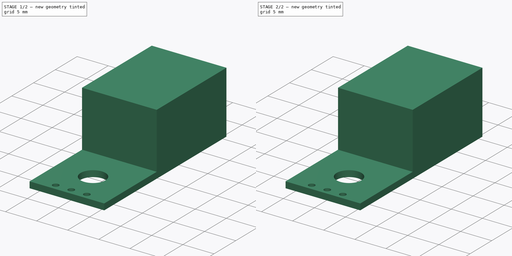
[diagram: build sequence overview — one tinted view per stage of 2, left to right]
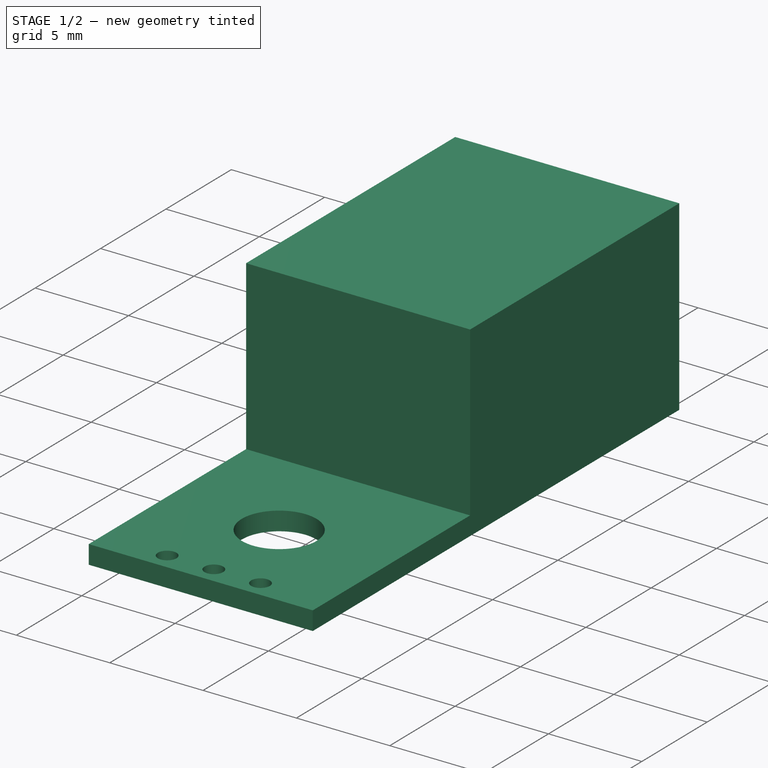
[diagram: stage 1 of 2 — iso view after this stage's code; geometry added in this stage tinted green]
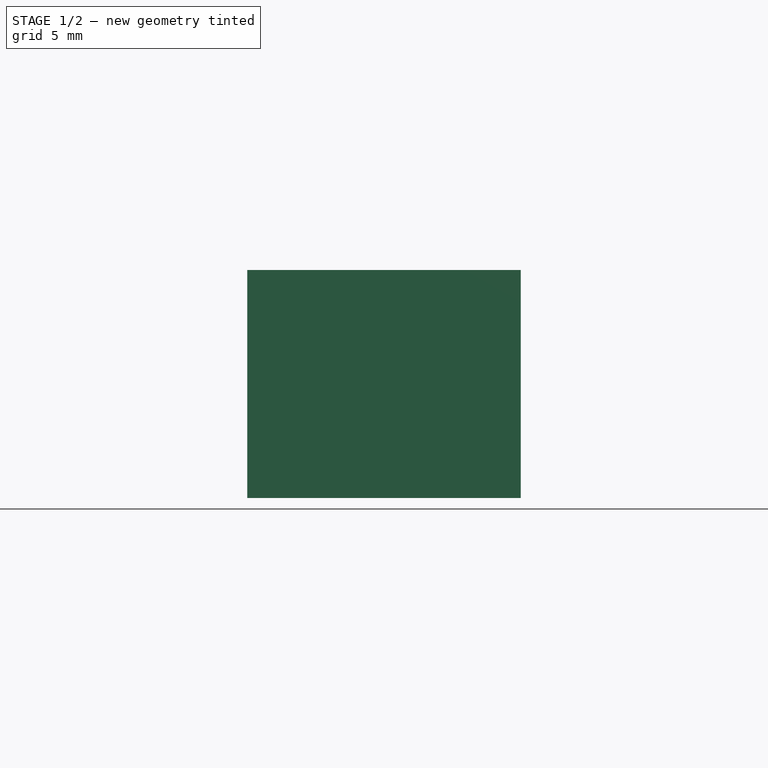
[diagram: stage 1 of 2 — front view after this stage's code; geometry added in this stage tinted green]
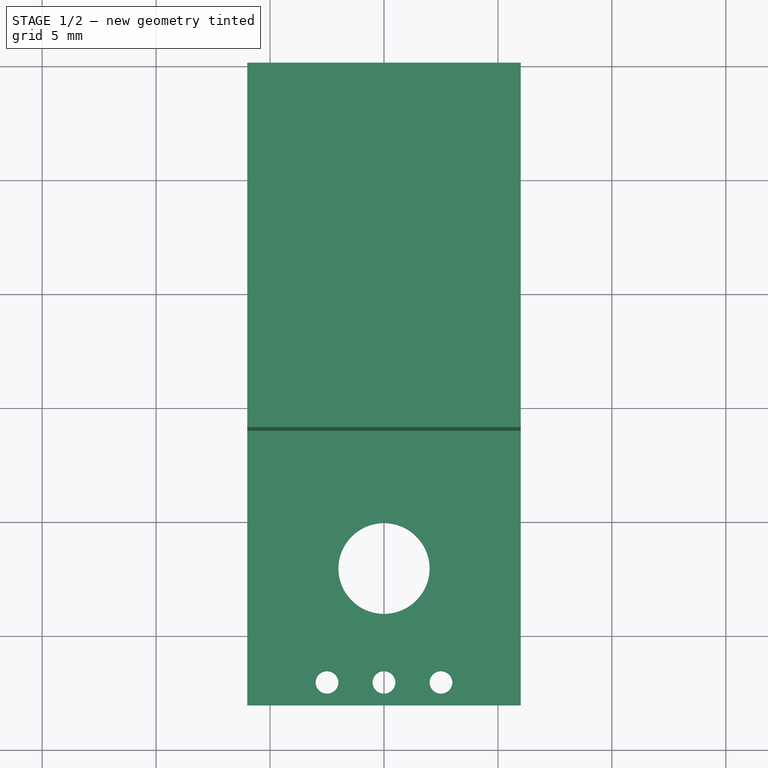
[diagram: stage 1 of 2 — top view after this stage's code; geometry added in this stage tinted green]
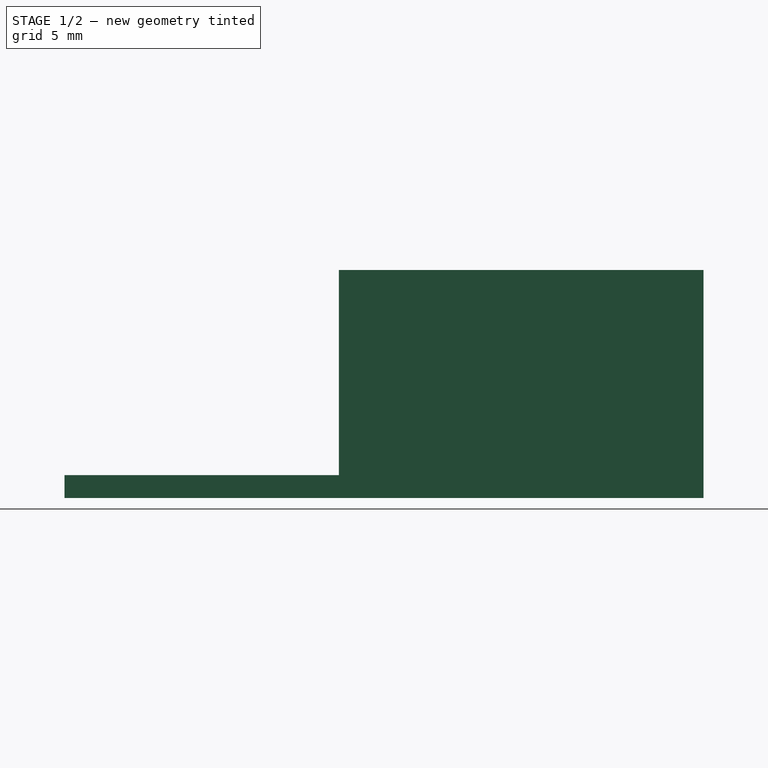
[diagram: stage 1 of 2 — right view after this stage's code; geometry added in this stage tinted green]
FCSTD DOCUMENT  (FreeCAD 0.16R6712 (Git))
Label: Dht22Sensor
License: All rights reserved
LicenseURL: http://en.wikipedia.org/wiki/All_rights_reserved
objects: Sketcher::SketchObject×1, PartDesign::Pad×1, Part::Box×1, Part::MultiFuse×1
note: 5 computed .brp shape members not serialized (recipe doc carries the construction recipe); baked Part::Feature solids carry a one-line shape summary decoded from their .brp

FEATURE [Sketcher::SketchObject] Sketch
  sketch-geometry (8):
    g0: LineSegment StartX=-6 StartY=14.9643 StartZ=0 EndX=6 EndY=14.9643 EndZ=0
    g1: LineSegment StartX=6 StartY=14.9643 StartZ=0 EndX=6 EndY=-13.0357 EndZ=0
    g2: LineSegment StartX=6 StartY=-13.0357 StartZ=0 EndX=-6 EndY=-13.0357 EndZ=0
    g3: LineSegment StartX=-6 StartY=-13.0357 StartZ=0 EndX=-6 EndY=14.9643 EndZ=0
    g4: Circle CenterX=0 CenterY=-12.0357 CenterZ=0 NormalX=0 NormalY=0 NormalZ=1 Radius=0.5
    g5: Circle CenterX=2.5 CenterY=-12.0357 CenterZ=0 NormalX=0 NormalY=0 NormalZ=1 Radius=0.5
    g6: Circle CenterX=-2.5 CenterY=-12.0357 CenterZ=0 NormalX=0 NormalY=0 NormalZ=1 Radius=0.5
    g7: Circle CenterX=0 CenterY=-7.03573 CenterZ=0 NormalX=0 NormalY=0 NormalZ=1 Radius=2
  constraints (23):
    c: Coincident(g0,g1)
    c: Coincident(g1,g2)
    c: Coincident(g2,g3)
    c: Coincident(g3,g0)
    c: Horizontal(g0)
    c: Horizontal(g2)
    c: Vertical(g1)
    c: Vertical(g3)
    c: Distance(g0) = 12
    c: Distance(g1) = 28
    c: DistanceX(g-2,g0) = -6
    c: Radius(g7) = 2
    c: Equal(g6,g4)
    c: Equal(g4,g5)
    c: Radius(g5) = 0.5
    c: PointOnObject(g4,g-2)
    c: Distance(g6,g4) = 2.5
    c: Distance(g6,g2) = 1
    c: Distance(g4,g2) = 1
    c: Distance(g5,g2) = 1
    c: Distance(g4,g5) = 2.5
    c: PointOnObject(g7,g-2)
    c: Distance(g7,g2) = 6
FEATURE [PartDesign::Pad] Pad
  Length = 1
  Length2 = 100
  Sketch = -> Sketch
  Type = 0
FEATURE [Part::Box] Box  label="Cube"
  Height = 10
  Length = 12
  Placement = pos=(-6,-1,0) rot=(0,0,1;0rad)
  Width = 16
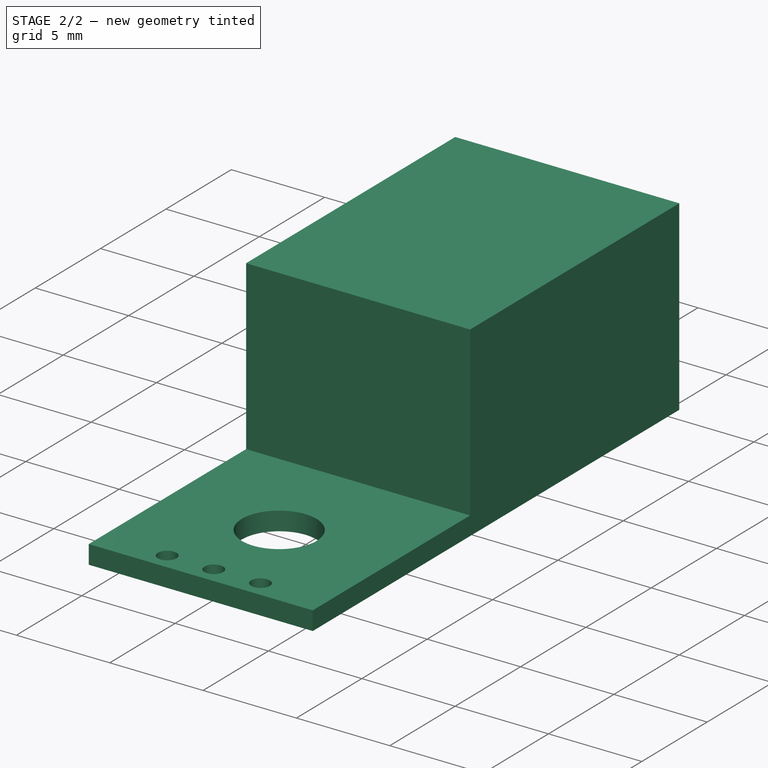
[diagram: stage 2 of 2 — iso view after this stage's code; geometry added in this stage tinted green]
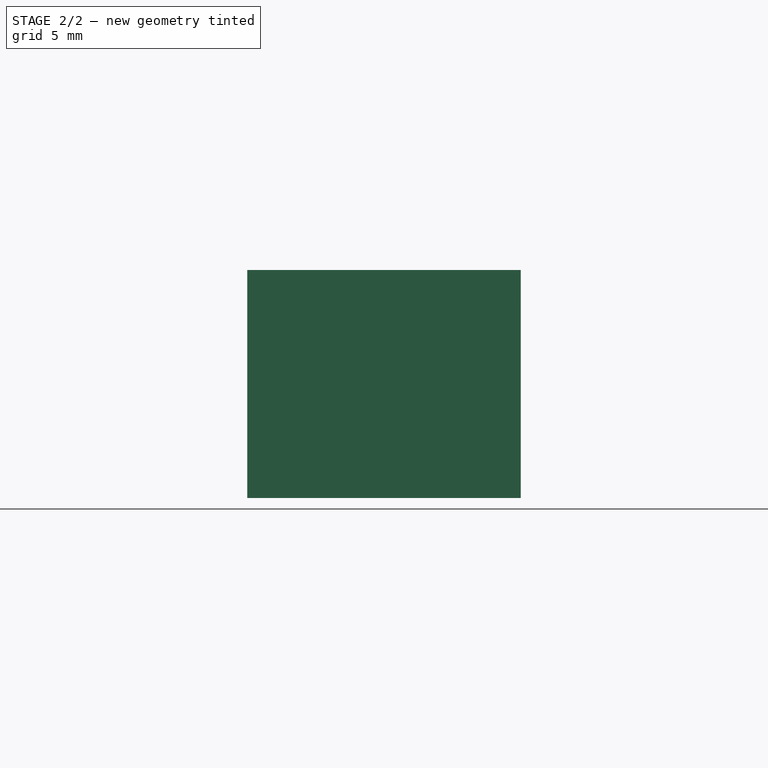
[diagram: stage 2 of 2 — front view after this stage's code; geometry added in this stage tinted green]
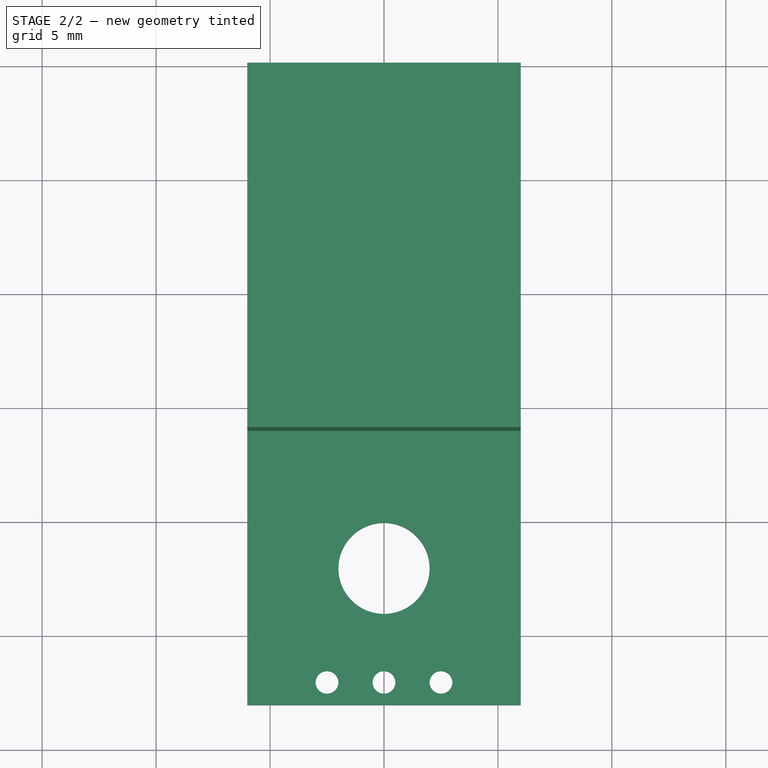
[diagram: stage 2 of 2 — top view after this stage's code; geometry added in this stage tinted green]
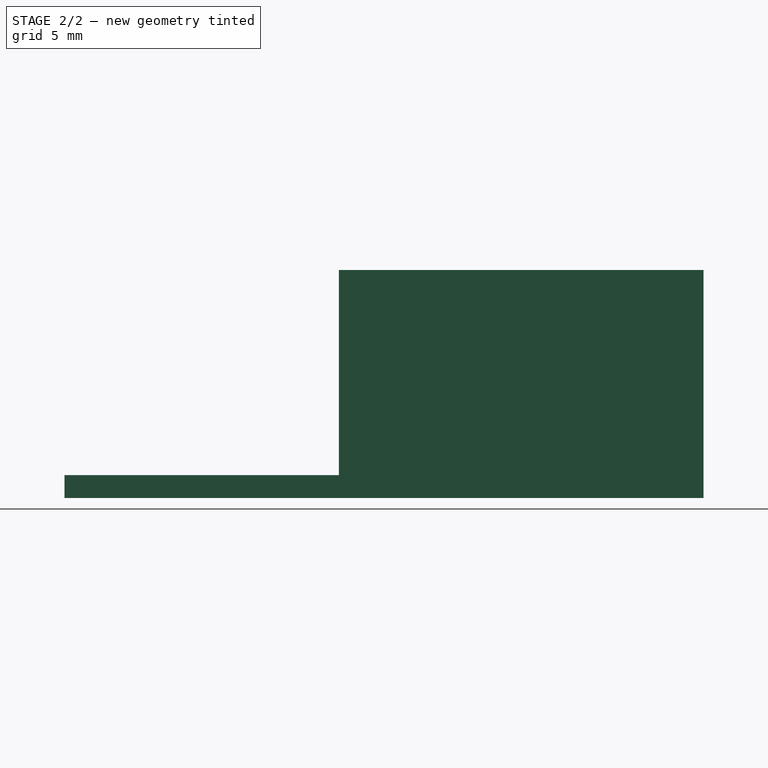
[diagram: stage 2 of 2 — right view after this stage's code; geometry added in this stage tinted green]
FEATURE [Part::MultiFuse] Fusion
  Shapes = -> [Box,Pad]
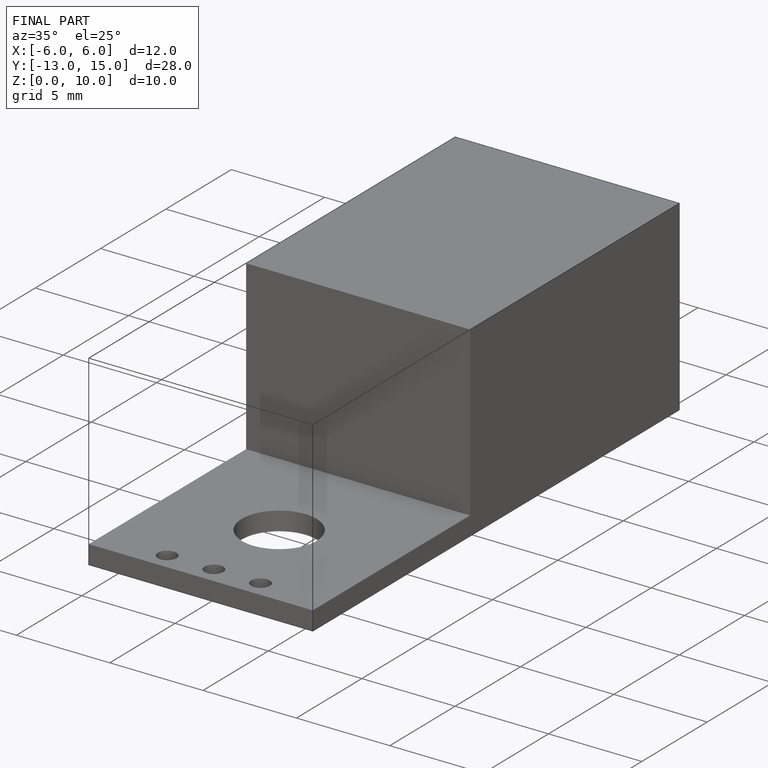
[diagram: finished part — iso view with bounding-box wireframe]
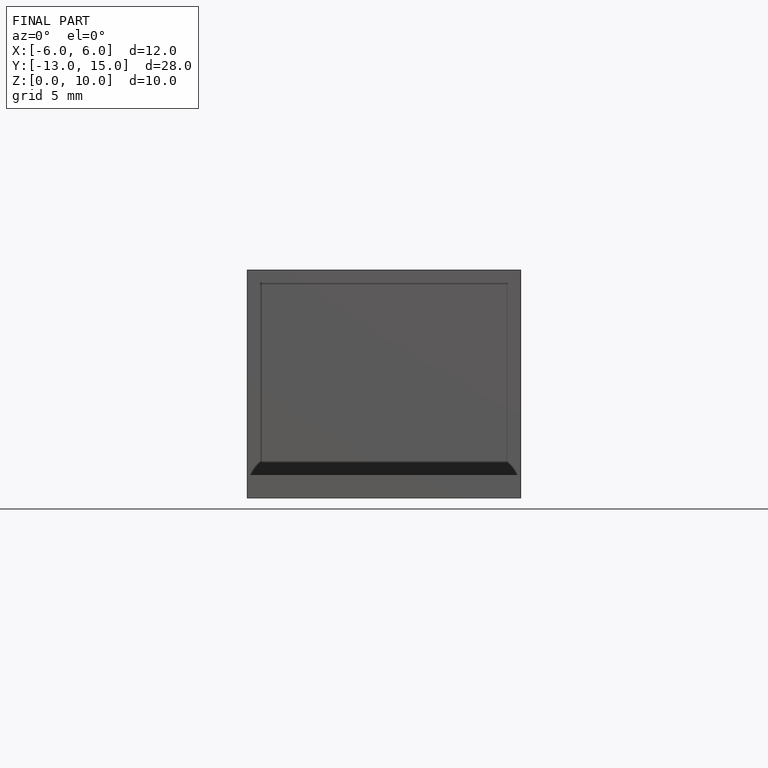
[diagram: finished part — front view with bounding-box wireframe]
